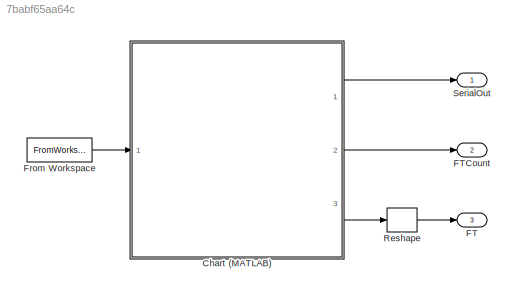
MODEL slx_7babf65aa64c
KIND model
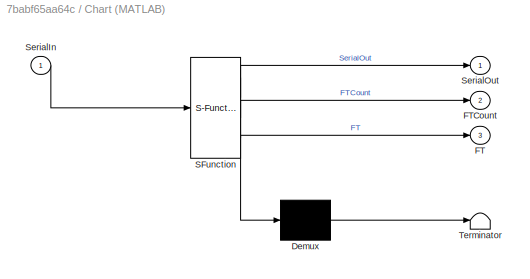
BLOCK [SubSystem] Chart (MATLAB)
  ErrorFcn = Stateflow.Translate.translate
  FunctionWithSeparateData = off
  MaskHideContents = off
  MinAlgLoopOccurrences = off
  Opaque = off
  PermitHierarchicalResolution = ExplicitOnly
  Ports = [1, 3]
  PropExecContextOutsideSubsystem = off
  RTWSystemCode = Auto
  RequestExecContextInheritance = off
  SFBlockType = Chart
  TreatAsAtomicUnit = on
BLOCK [Demux] Chart (MATLAB)/ Demux 
  Outputs = 1
  Ports = [1, 1]
BLOCK [S-Function] Chart (MATLAB)/ SFunction 
  EnableBusSupport = on
  FunctionName = sf_sfun
  PortCounts = [1 4]
  Ports = [1, 4]
  Tag = Stateflow S-Function FTTest01 3
BLOCK [Terminator] Chart (MATLAB)/ Terminator 
BLOCK [Outport] Chart (MATLAB)/FT
  IconDisplay = Port number
  Port = 3
BLOCK [Outport] Chart (MATLAB)/FTCount
  IconDisplay = Port number
  Port = 2
BLOCK [Inport] Chart (MATLAB)/SerialIn
  IconDisplay = Port number
BLOCK [Outport] Chart (MATLAB)/SerialOut
  IconDisplay = Port number
BLOCK [Outport] FT
  IconDisplay = Port number
  Port = 3
BLOCK [Outport] FTCount
  IconDisplay = Port number
  Port = 2
BLOCK [FromWorkspace] From Workspace
  Interpolate = off
  OutputAfterFinalValue = Setting to zero
  SampleTime = 0
  VariableName = FIFO
  ZeroCross = on
BLOCK [Reshape] Reshape
  Ports = [1, 1]
BLOCK [Outport] SerialOut
  IconDisplay = Port number
LINE Chart (MATLAB):1 -> SerialOut:1
LINE Chart (MATLAB):2 -> FTCount:1
LINE Chart (MATLAB):3 -> Reshape:1
LINE From Workspace:1 -> Chart (MATLAB):1
LINE Reshape:1 -> FT:1
